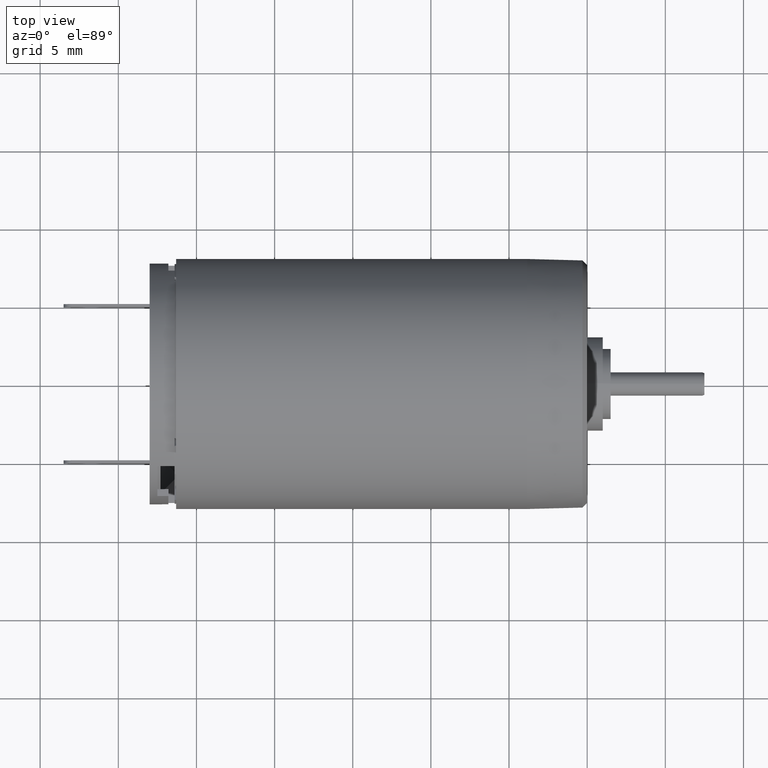
[diagram: clean part render]
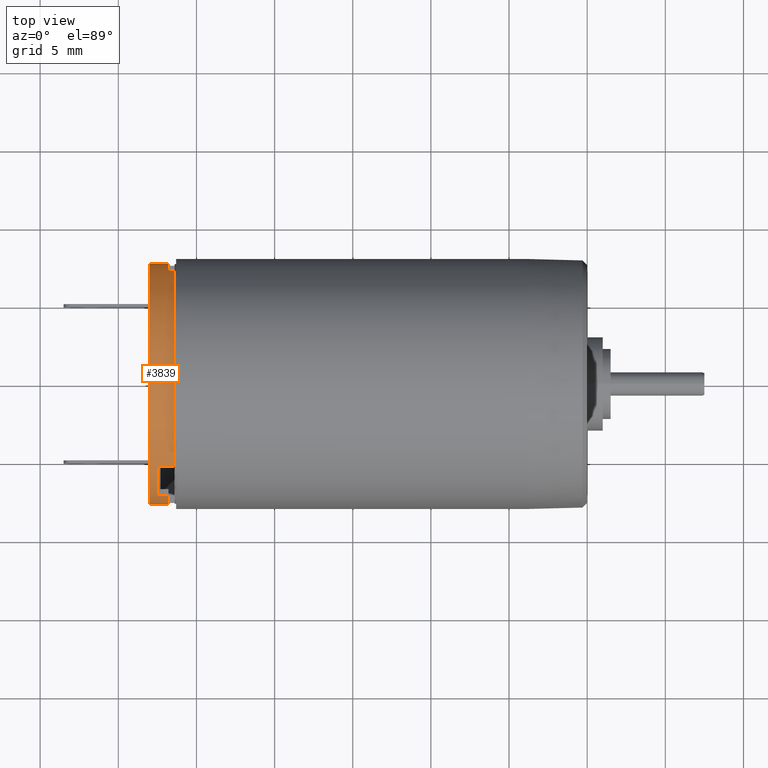
[diagram: same view with one face highlighted and labeled with its STEP entity id]
A machine part, top view. The second image highlights one B-rep face of the part: STEP entity #3839.
In plain terms, the highlighted cylindrical surface (partial cylindrical patch) has radius 7.7 mm, axis along (-1, 0, 0).
Its self-contained STEP definition (entity closure, byte-faithful):
#6=DIRECTION('',(1.E0,-1.291895883200E-14,2.470750876620E-13));
#7=VECTOR('',#6,1.1E0);
#8=CARTESIAN_POINT('',(-2.75E1,5.878056994159E0,-4.973775826614E0));
#9=LINE('',#8,#7);
#128=DIRECTION('',(-1.E0,7.105427357601E-14,-1.909583602355E-13));
#129=VECTOR('',#128,4.E-1);
#130=CARTESIAN_POINT('',(-2.64E1,7.211102550928E0,2.7E0));
#131=LINE('',#130,#129);
#145=CARTESIAN_POINT('',(-2.64E1,0.E0,0.E0));
#146=DIRECTION('',(-1.E0,0.E0,0.E0));
#147=DIRECTION('',(0.E0,-6.963318191077E-1,7.177199995111E-1));
#148=AXIS2_PLACEMENT_3D('',#145,#146,#147);
#208=CARTESIAN_POINT('',(-2.64E1,0.E0,0.E0));
#209=DIRECTION('',(-1.E0,0.E0,0.E0));
#210=DIRECTION('',(0.E0,9.856449849875E-1,-1.688311688312E-1));
#211=AXIS2_PLACEMENT_3D('',#208,#209,#210);
#226=DIRECTION('',(1.E0,-7.549516567451E-14,9.825473767933E-14));
#227=VECTOR('',#226,4.E-1);
#228=CARTESIAN_POINT('',(-2.68E1,7.589466384404E0,-1.3E0));
#229=LINE('',#228,#227);
#266=DIRECTION('',(-1.E0,3.774758283726E-14,-2.270406085358E-13));
#267=VECTOR('',#266,4.E-1);
#268=CARTESIAN_POINT('',(-2.64E1,-7.589466384404E0,-1.3E0));
#269=LINE('',#268,#267);
#275=CARTESIAN_POINT('',(-2.64E1,0.E0,0.E0));
#276=DIRECTION('',(-1.E0,0.E0,0.E0));
#277=DIRECTION('',(0.E0,-2.597402597402E-1,-9.656785166245E-1));
#278=AXIS2_PLACEMENT_3D('',#275,#276,#277);
#757=CARTESIAN_POINT('',(-2.64E1,0.E0,0.E0));
#758=DIRECTION('',(-1.E0,0.E0,0.E0));
#759=DIRECTION('',(0.E0,7.633840252155E-1,-6.459449125473E-1));
#760=AXIS2_PLACEMENT_3D('',#757,#758,#759);
#762=DIRECTION('',(1.E0,2.791417890486E-14,8.183929724380E-14));
#763=VECTOR('',#762,7.E-1);
#764=CARTESIAN_POINT('',(-2.75E1,-7.211102550928E0,2.7E0));
#765=LINE('',#764,#763);
#766=CARTESIAN_POINT('',(-2.75E1,0.E0,0.E0));
#767=DIRECTION('',(-1.E0,0.E0,0.E0));
#768=DIRECTION('',(0.E0,-9.365068247959E-1,3.506493506493E-1));
#769=AXIS2_PLACEMENT_3D('',#766,#767,#768);
#789=DIRECTION('',(1.E0,4.796163466381E-13,3.253962755810E-13));
#790=VECTOR('',#789,1.1E0);
#791=CARTESIAN_POINT('',(-2.75E1,-5.361755007130E0,5.526443996235E0));
#792=LINE('',#791,#790);
#896=DIRECTION('',(-1.E0,-1.227301089040E-13,1.677446060843E-13));
#897=VECTOR('',#896,1.1E0);
#898=CARTESIAN_POINT('',(-2.64E1,7.472464169477E0,-1.858031010476E0));
#899=LINE('',#898,#897);
#909=CARTESIAN_POINT('',(-2.75E1,0.E0,0.E0));
#910=DIRECTION('',(-1.E0,0.E0,0.E0));
#911=DIRECTION('',(0.E0,9.704498921398E-1,-2.413027286332E-1));
#912=AXIS2_PLACEMENT_3D('',#909,#910,#911);
#1021=CARTESIAN_POINT('',(-2.68E1,0.E0,0.E0));
#1022=DIRECTION('',(-1.E0,0.E0,0.E0));
#1023=DIRECTION('',(0.E0,-9.856449849875E-1,-1.688311688312E-1));
#1024=AXIS2_PLACEMENT_3D('',#1021,#1022,#1023);
#1048=DIRECTION('',(1.E0,4.052314039882E-14,-1.110223024625E-13));
#1049=VECTOR('',#1048,1.6E0);
#1050=CARTESIAN_POINT('',(-2.8E1,-2.E0,-7.435724578009E0));
#1051=LINE('',#1050,#1049);
#1080=DIRECTION('',(-1.E0,-7.216449660064E-14,-1.182387521226E-13));
#1081=VECTOR('',#1080,1.6E0);
#1082=CARTESIAN_POINT('',(-2.64E1,2.E0,-7.435724578009E0));
#1083=LINE('',#1082,#1081);
#1106=CARTESIAN_POINT('',(-2.8E1,0.E0,0.E0));
#1107=DIRECTION('',(1.E0,0.E0,0.E0));
#1108=DIRECTION('',(0.E0,2.597402597402E-1,-9.656785166245E-1));
#1109=AXIS2_PLACEMENT_3D('',#1106,#1107,#1108);
#1111=CARTESIAN_POINT('',(-2.8E1,0.E0,0.E0));
#1112=DIRECTION('',(1.E0,0.E0,0.E0));
#1113=DIRECTION('',(0.E0,1.E0,0.E0));
#1114=AXIS2_PLACEMENT_3D('',#1111,#1112,#1113);
#2129=CARTESIAN_POINT('',(-2.68E1,0.E0,0.E0));
#2130=DIRECTION('',(-1.E0,0.E0,0.E0));
#2131=DIRECTION('',(0.E0,9.365068247959E-1,3.506493506493E-1));
#2132=AXIS2_PLACEMENT_3D('',#2129,#2130,#2131);
#2134=CARTESIAN_POINT('',(-2.68E1,0.E0,0.E0));
#2135=DIRECTION('',(-1.E0,0.E0,0.E0));
#2136=DIRECTION('',(0.E0,1.E0,0.E0));
#2137=AXIS2_PLACEMENT_3D('',#2134,#2135,#2136);
#2481=CARTESIAN_POINT('',(-2.8E1,2.E0,-7.435724578009E0));
#2483=VERTEX_POINT('',#2481);
#2486=CARTESIAN_POINT('',(-2.8E1,-2.E0,-7.435724578009E0));
#2488=VERTEX_POINT('',#2486);
#2578=CARTESIAN_POINT('',(-2.75E1,-7.211102550928E0,2.7E0));
#2579=CARTESIAN_POINT('',(-2.75E1,-5.361755007130E0,5.526443996235E0));
#2580=VERTEX_POINT('',#2578);
#2581=VERTEX_POINT('',#2579);
#2582=CARTESIAN_POINT('',(-2.68E1,-7.211102550928E0,2.7E0));
#2583=VERTEX_POINT('',#2582);
#2584=CARTESIAN_POINT('',(-2.68E1,-7.589466384404E0,-1.3E0));
#2585=VERTEX_POINT('',#2584);
#2586=CARTESIAN_POINT('',(-2.64E1,-7.589466384404E0,-1.3E0));
#2587=VERTEX_POINT('',#2586);
#2588=CARTESIAN_POINT('',(-2.64E1,-2.E0,-7.435724578009E0));
#2589=VERTEX_POINT('',#2588);
#2590=CARTESIAN_POINT('',(-2.8E1,7.7E0,0.E0));
#2591=VERTEX_POINT('',#2590);
#2592=CARTESIAN_POINT('',(-2.64E1,2.E0,-7.435724578009E0));
#2593=VERTEX_POINT('',#2592);
#2594=CARTESIAN_POINT('',(-2.64E1,5.878056994159E0,-4.973775826614E0));
#2595=VERTEX_POINT('',#2594);
#2596=CARTESIAN_POINT('',(-2.75E1,5.878056994159E0,-4.973775826614E0));
#2597=VERTEX_POINT('',#2596);
#2598=CARTESIAN_POINT('',(-2.75E1,7.472464169477E0,-1.858031010476E0));
#2599=VERTEX_POINT('',#2598);
#2600=CARTESIAN_POINT('',(-2.64E1,7.472464169477E0,-1.858031010476E0));
#2601=VERTEX_POINT('',#2600);
#2602=CARTESIAN_POINT('',(-2.64E1,7.589466384404E0,-1.3E0));
#2603=VERTEX_POINT('',#2602);
#2604=CARTESIAN_POINT('',(-2.68E1,7.589466384404E0,-1.3E0));
#2605=VERTEX_POINT('',#2604);
#2606=CARTESIAN_POINT('',(-2.68E1,7.7E0,0.E0));
#2607=VERTEX_POINT('',#2606);
#2608=CARTESIAN_POINT('',(-2.68E1,7.211102550928E0,2.7E0));
#2609=VERTEX_POINT('',#2608);
#2610=CARTESIAN_POINT('',(-2.64E1,7.211102550928E0,2.7E0));
#2611=VERTEX_POINT('',#2610);
#2612=CARTESIAN_POINT('',(-2.64E1,-5.361755007129E0,5.526443996235E0));
#2613=VERTEX_POINT('',#2612);
#3800=CARTESIAN_POINT('',(-2.6368E1,0.E0,0.E0));
#3801=DIRECTION('',(-1.E0,0.E0,0.E0));
#3802=DIRECTION('',(0.E0,1.E0,0.E0));
#3803=AXIS2_PLACEMENT_3D('',#3800,#3801,#3802);
#3804=CYLINDRICAL_SURFACE('',#3803,7.7E0);
#3806=ORIENTED_EDGE('',*,*,#3805,.F.);
#3808=ORIENTED_EDGE('',*,*,#3807,.T.);
#3810=ORIENTED_EDGE('',*,*,#3809,.F.);
#3811=ORIENTED_EDGE('',*,*,#3121,.F.);
#3812=ORIENTED_EDGE('',*,*,#3142,.F.);
#3814=ORIENTED_EDGE('',*,*,#3813,.F.);
#3816=ORIENTED_EDGE('',*,*,#3815,.F.);
#3818=ORIENTED_EDGE('',*,*,#3817,.F.);
#3820=ORIENTED_EDGE('',*,*,#3819,.F.);
#3821=ORIENTED_EDGE('',*,*,#3791,.F.);
#3822=ORIENTED_EDGE('',*,*,#2801,.F.);
#3824=ORIENTED_EDGE('',*,*,#3823,.F.);
#3826=ORIENTED_EDGE('',*,*,#3825,.F.);
#3827=ORIENTED_EDGE('',*,*,#3029,.F.);
#3828=ORIENTED_EDGE('',*,*,#3049,.F.);
#3830=ORIENTED_EDGE('',*,*,#3829,.F.);
#3832=ORIENTED_EDGE('',*,*,#3831,.F.);
#3833=ORIENTED_EDGE('',*,*,#2920,.F.);
#3834=ORIENTED_EDGE('',*,*,#2939,.F.);
#3836=ORIENTED_EDGE('',*,*,#3835,.F.);
#3837=EDGE_LOOP('',(#3806,#3808,#3810,#3811,#3812,#3814,#3816,#3818,#3820,#3821,
#3822,#3824,#3826,#3827,#3828,#3830,#3832,#3833,#3834,#3836));
#3838=FACE_OUTER_BOUND('',#3837,.F.);
#3839=ADVANCED_FACE('',(#3838),#3804,.T.);
#149=CIRCLE('',#148,7.7E0);
#212=CIRCLE('',#211,7.7E0);
#279=CIRCLE('',#278,7.7E0);
#761=CIRCLE('',#760,7.7E0);
#770=CIRCLE('',#769,7.7E0);
#913=CIRCLE('',#912,7.7E0);
#1025=CIRCLE('',#1024,7.7E0);
#1110=CIRCLE('',#1109,7.7E0);
#1115=CIRCLE('',#1114,7.7E0);
#2133=CIRCLE('',#2132,7.7E0);
#2138=CIRCLE('',#2137,7.7E0);
#2801=EDGE_CURVE('',#2597,#2595,#9,.T.);
#2920=EDGE_CURVE('',#2611,#2609,#131,.T.);
#2939=EDGE_CURVE('',#2613,#2611,#149,.T.);
#3029=EDGE_CURVE('',#2603,#2601,#212,.T.);
#3049=EDGE_CURVE('',#2605,#2603,#229,.T.);
#3121=EDGE_CURVE('',#2587,#2585,#269,.T.);
#3142=EDGE_CURVE('',#2589,#2587,#279,.T.);
#3791=EDGE_CURVE('',#2595,#2593,#761,.T.);
#3805=EDGE_CURVE('',#2580,#2581,#770,.T.);
#3807=EDGE_CURVE('',#2580,#2583,#765,.T.);
#3809=EDGE_CURVE('',#2585,#2583,#1025,.T.);
#3813=EDGE_CURVE('',#2488,#2589,#1051,.T.);
#3815=EDGE_CURVE('',#2591,#2488,#1115,.T.);
#3817=EDGE_CURVE('',#2483,#2591,#1110,.T.);
#3819=EDGE_CURVE('',#2593,#2483,#1083,.T.);
#3823=EDGE_CURVE('',#2599,#2597,#913,.T.);
#3825=EDGE_CURVE('',#2601,#2599,#899,.T.);
#3829=EDGE_CURVE('',#2607,#2605,#2138,.T.);
#3831=EDGE_CURVE('',#2609,#2607,#2133,.T.);
#3835=EDGE_CURVE('',#2581,#2613,#792,.T.);